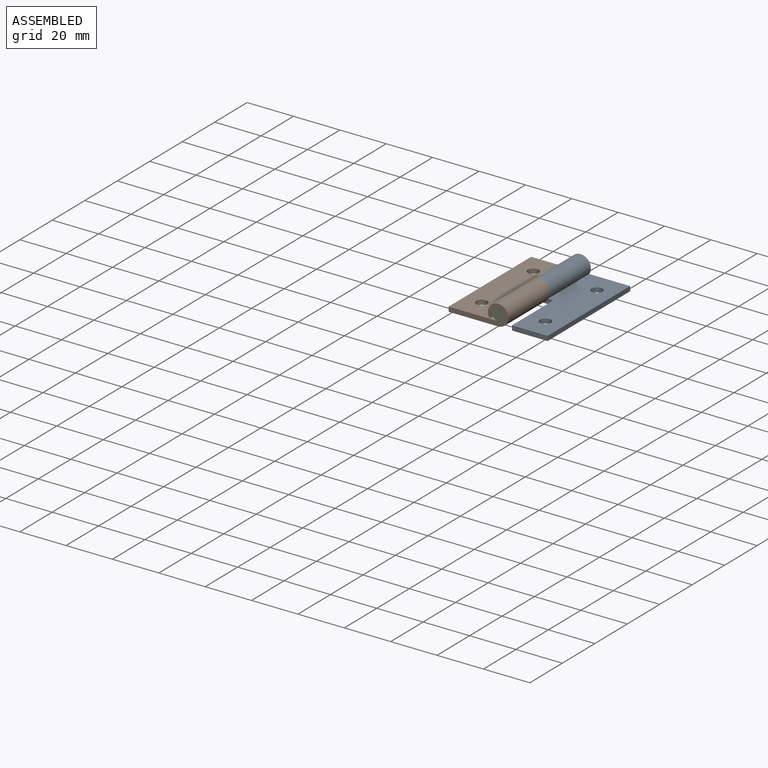
[diagram: assembled view]
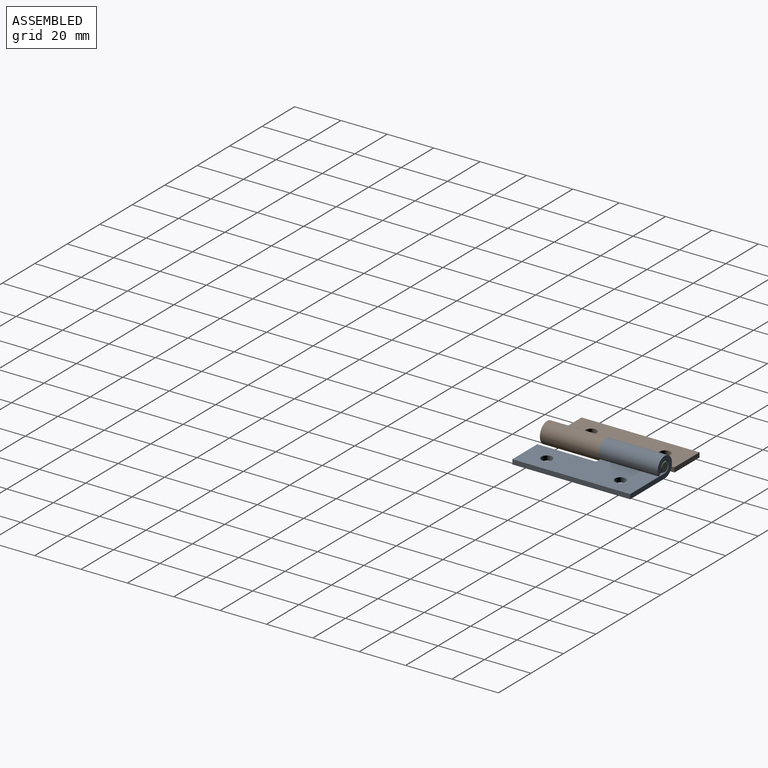
[diagram: assembled view, second angle]
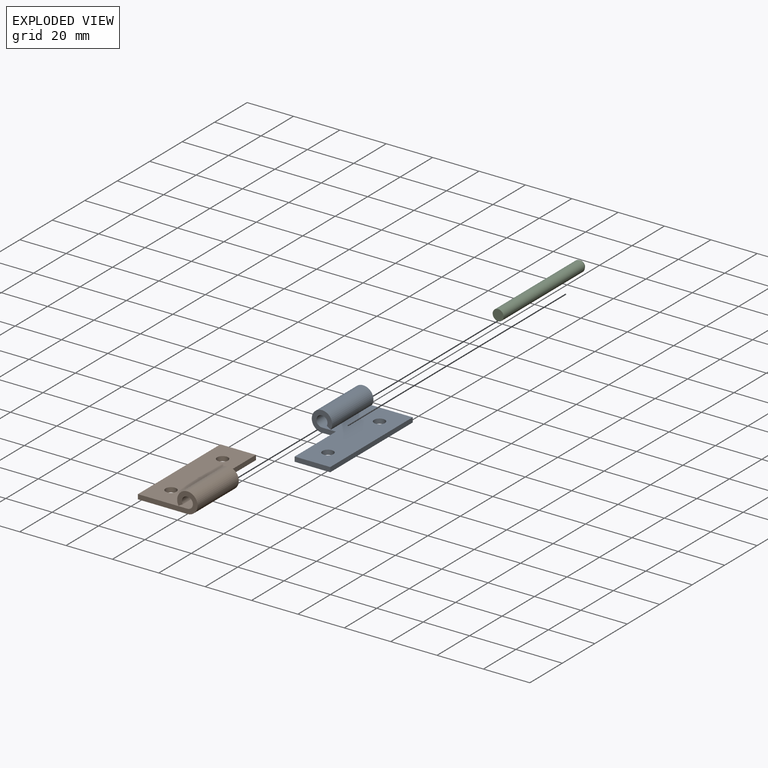
[diagram: exploded view]
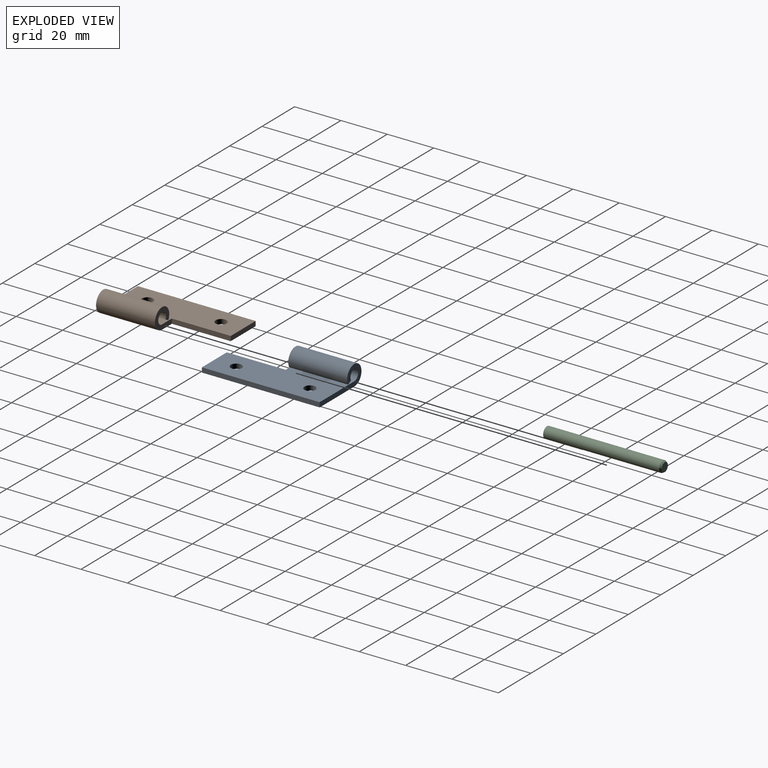
[diagram: exploded view, second angle]
ASSEMBLY  parts=3 mates=2
PART A: 13 faces, bbox 25.7x50.8x8.8 mm
  f0: plane 50.8x2.03mm, normal (1,0,0), area 103.2mm2, adj f1,f2,f3,f4
  f1: plane 21.34x2.03mm, normal (0,1,0), area 43.4mm2, adj f0,f3,f4,f6
  f2: plane 15.34x2.03mm, normal (0,-1,0), area 31.2mm2, adj f0,f3,f4,f9
  f3: plane 50.8x21.34mm, normal (0,0,1), area 896mm2, adj f0,f1,f2,f8,f9,f10,f11,f12
  f4: plane 50.8x21.34mm, normal (0,0,-1), area 896mm2, adj f0,f1,f2,f7,f9,f10,f11,f12
  f5: plane 25.4x1.76mm, normal (-0.5,0,-0.87), area 51.6mm2, adj f6,f7,f8,f10
  f6: plane 8.81x8.81mm, normal (0,1,0), area 36.1mm2, adj f1,f5,f7,f8
  f7: cylinder r=4.41mm len=25.4mm, axis (0,-1,0), area 586.1mm2, adj f4,f5,f6,f10
  f8: cylinder r=2.37mm len=25.4mm, axis (0,-1,0), area 315.8mm2, adj f3,f5,f6,f10
  f9: plane 25.4x2.03mm, normal (-1,0,0), area 51.6mm2, adj f2,f3,f4,f10
  f10: plane 10.41x8.81mm, normal (0,-1,0), area 48.3mm2, adj f3,f4,f5,f7,f8,f9
  f11: cylinder r=2.37mm len=4.75mm, axis (0,0,1), area 30.3mm2, adj f3,f4
  f12: cylinder r=2.37mm len=4.75mm, axis (0,0,1), area 30.3mm2, adj f3,f4
PART B: 28 faces, bbox 25.7x50.8x8.8 mm
  f0: plane 50.8x2.03mm, normal (-1,0,0), area 103.2mm2, adj f1,f2,f3,f4
  f1: plane 21.34x2.03mm, normal (0,-1,0), area 43.4mm2, adj f0,f3,f4,f6
  f2: plane 15.34x2.03mm, normal (0,1,0), area 31.2mm2, adj f0,f3,f4,f9
  f3: plane 50.8x21.34mm, normal (0,0,1), area 896mm2, adj f0,f1,f2,f8,f9,f10,f26,f27
  f4: plane 50.8x21.34mm, normal (0,0,-1), area 890.5mm2, adj f0,f1,f2,f7,f9,f10,f18,f20
  f5: plane 25.4x1.76mm, normal (0.5,0,-0.87), area 51.6mm2, adj f6,f7,f8,f10
  f6: plane 8.81x8.81mm, normal (0,-1,0), area 36.1mm2, adj f1,f5,f7,f8
  f7: cylinder r=4.41mm len=25.4mm, axis (0,1,0), area 580.2mm2, adj f4,f5,f6,f10,f17,f19,f21
  f8: cylinder r=2.37mm len=25.4mm, axis (0,1,0), area 315.8mm2, adj f3,f5,f6,f10
  f9: plane 25.4x2.03mm, normal (1,0,0), area 51.6mm2, adj f2,f3,f4,f10
  f10: plane 10.41x8.81mm, normal (0,1,0), area 48.3mm2, adj f3,f4,f5,f7,f8,f9
  f11: cone r=0.79mm half-angle=30deg, axis (0,0,-1), area 1.3mm2, adj f17,f18,f23
  f12: plane 0.41x0.41mm, normal (0,0,-1), area 0.1mm2, adj f23
  f13: cone r=0.79mm half-angle=30deg, axis (0,0,-1), area 1.3mm2, adj f19,f20,f24
  f14: plane 0.41x0.41mm, normal (0,0,-1), area 0.1mm2, adj f24
  f15: cone r=0.79mm half-angle=30deg, axis (0,0,-1), area 1.3mm2, adj f21,f22,f25
  f16: plane 0.41x0.41mm, normal (0,0,-1), area 0.1mm2, adj f25
  f17: bspline ~2.17x1.34mm, area 1.6mm2, adj f7,f11,f18
  f18: torus R=1.09mm, axis (0,0,1), area 1.4mm2, adj f4,f11,f17
  f19: bspline ~2.17x1.34mm, area 1.6mm2, adj f7,f13,f20
  f20: torus R=1.09mm, axis (0,0,1), area 1.4mm2, adj f4,f13,f19
  f21: bspline ~2.17x1.34mm, area 1.6mm2, adj f7,f15,f22
  f22: torus R=1.09mm, axis (0,0,1), area 1.4mm2, adj f4,f15,f21
  f23: torus R=0.21mm, axis (0,0,-1), area 0.5mm2, adj f11,f12
  f24: torus R=0.21mm, axis (0,0,-1), area 0.5mm2, adj f13,f14
  f25: torus R=0.21mm, axis (0,0,-1), area 0.5mm2, adj f15,f16
  f26: cylinder r=2.37mm len=4.75mm, axis (0,0,1), area 30.3mm2, adj f3,f4
  f27: cylinder r=2.37mm len=4.75mm, axis (0,0,1), area 30.3mm2, adj f3,f4
PART C: 4 faces, bbox 4.8x50.8x4.8 mm
  f0: cylinder r=2.37mm len=50.01mm, axis (0,-1,0), area 746.2mm2, adj f2,f3
  f1: plane 3.83x3.83mm, normal (0,1,0), area 11.5mm2, adj f3
  f2: plane 4.75x4.75mm, normal (0,-1,0), area 17.7mm2, adj f0
  f3: cone r=1.92mm half-angle=30deg, axis (0,-1,0), area 12.4mm2, adj f0,f1
PLACE A rot(axis=(0,-1,0),0deg) t=(0,0,0)mm
PLACE B at identity fixed
PLACE C at identity
MATE revolute A.f7 <-> C.f0  axis (0,1,0) through (1.23,26.6,6.72)mm
MATE fastened C.f0 <-> B.f7  axis (0,-1,0) through (1.23,-24.2,6.72)mm
